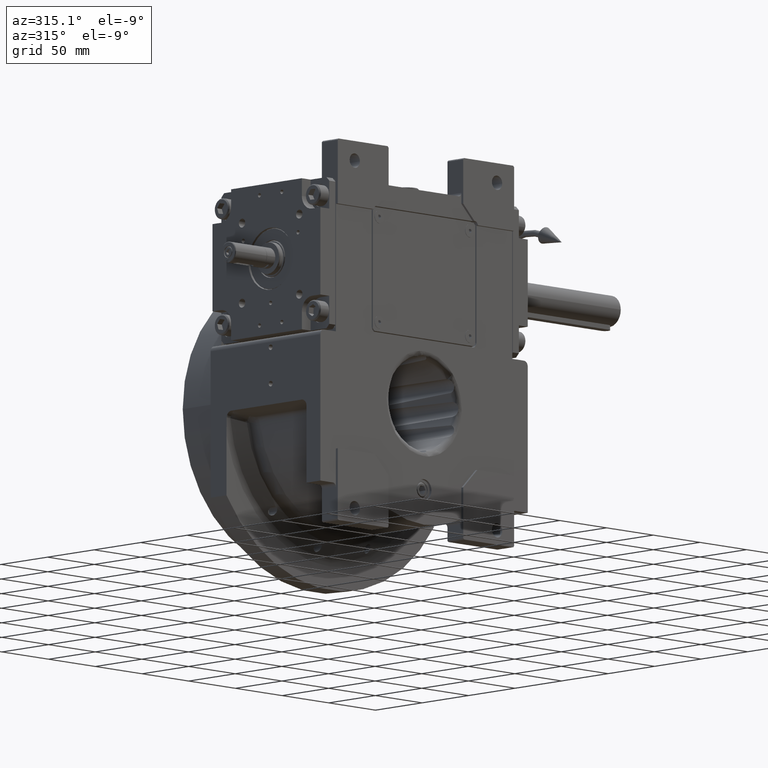
[diagram: clean part render]
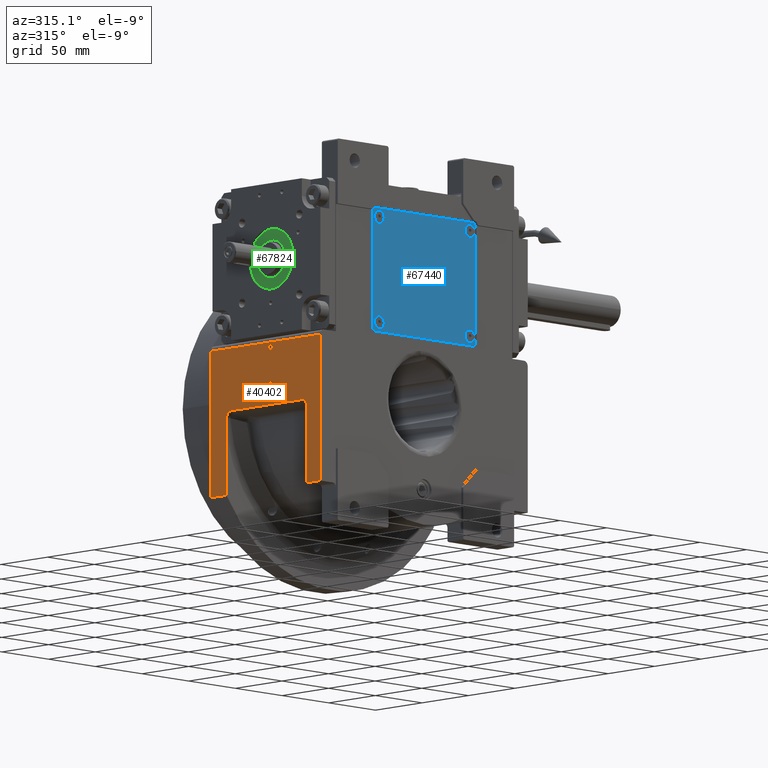
[diagram: same view with three faces highlighted in distinct colors, each labeled with its STEP entity id]
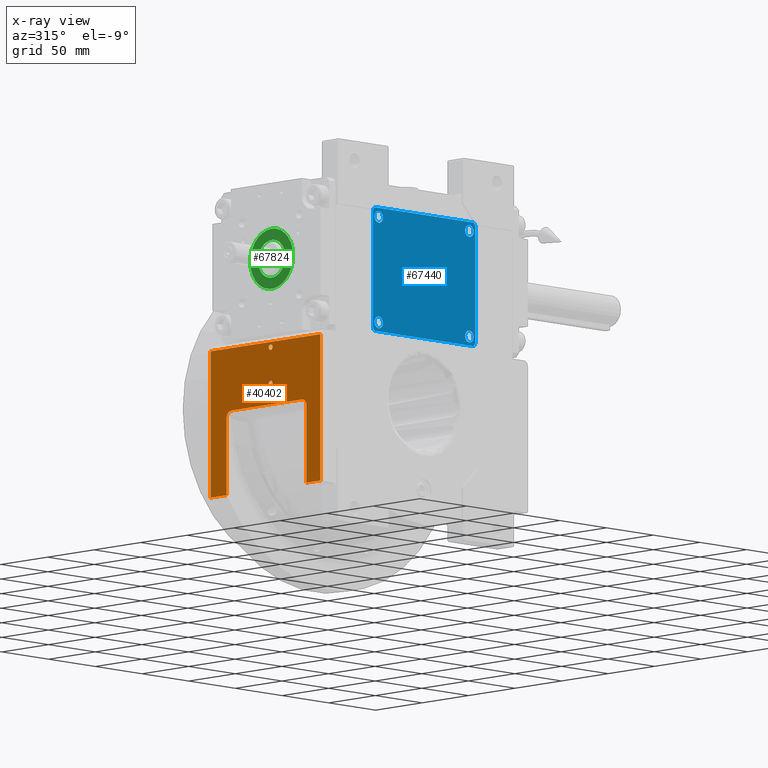
[diagram: x-ray of the same camera — body ghosted, the three highlighted faces saturated]
A machine part, auxiliary view with three faces highlighted in distinct colors.
The next image is the same camera in x-ray (body ghosted, the three faces saturated) — at least one of them is partly hidden behind the body in this view.
Their STEP definitions:

[orange] entity #40402 — the highlighted planar face has unit normal (-1, 0, 0).
#213 = EDGE_CURVE ( 'NONE', #57470, #65083, #43554, .T. ) ;
#360 = CARTESIAN_POINT ( 'NONE',  ( -111.0000000000000284, -38.50000000000000000, -9.144127173638402439 ) ) ;
#388 = DIRECTION ( 'NONE',  ( 0.000000000000000000, 0.000000000000000000, 1.000000000000000000 ) ) ;
#1241 = DIRECTION ( 'NONE',  ( 0.000000000000000000, -1.000000000000000000, 0.000000000000000000 ) ) ;
#2281 = CARTESIAN_POINT ( 'NONE',  ( -111.0000000000000142, 45.57238403428445395, -8.162200170006535416 ) ) ;
#2290 = LINE ( 'NONE', #54681, #30637 ) ;
#2848 = ORIENTED_EDGE ( 'NONE', *, *, #36908, .T. ) ;
#2965 = CARTESIAN_POINT ( 'NONE',  ( -111.0000000000000284, 44.80537002266407853, -7.628406989121505610 ) ) ;
#4379 = CARTESIAN_POINT ( 'NONE',  ( -111.0000000000000000, 2.100000000000000089, 9.000000000000000000 ) ) ;
#4915 = EDGE_LOOP ( 'NONE', ( #2848, #50731 ) ) ;
#4954 = VERTEX_POINT ( 'NONE', #19356 ) ;
#5187 = CARTESIAN_POINT ( 'NONE',  ( -111.0000000000000000, 47.50000000000000000, -25.44626115736729588 ) ) ;
#5208 = EDGE_CURVE ( 'NONE', #34305, #59630, #31456, .T. ) ;
#5230 = CARTESIAN_POINT ( 'NONE',  ( -111.0000000000000000, -38.50000000000000000, -12.17638090205042189 ) ) ;
#5250 = AXIS2_PLACEMENT_3D ( 'NONE', #11910, #59775, #54207 ) ;
#5271 = VERTEX_POINT ( 'NONE', #49437 ) ;
#5921 = CARTESIAN_POINT ( 'NONE',  ( -111.0000000000000142, -36.42893218813447476, -6.999999999999989342 ) ) ;
#6140 = CARTESIAN_POINT ( 'NONE',  ( -111.0000000000000000, -38.50000000000000000, -71.43528539874409944 ) ) ;
#7477 = CARTESIAN_POINT ( 'NONE',  ( -111.0000000000000142, 46.87834784565706059, -10.00509416193215095 ) ) ;
#7510 = ORIENTED_EDGE ( 'NONE', *, *, #55289, .F. ) ;
#8029 = EDGE_CURVE ( 'NONE', #31505, #52250, #30645, .T. ) ;
#8532 = CARTESIAN_POINT ( 'NONE',  ( -111.0000000000000000, 45.20819138357048672, -7.866231648914137509 ) ) ;
#9474 = AXIS2_PLACEMENT_3D ( 'NONE', #42196, #26243, #21038 ) ;
#9727 = CARTESIAN_POINT ( 'NONE',  ( -111.0000000000000284, 47.26671036820440008, -12.69711666045169274 ) ) ;
#10424 = CARTESIAN_POINT ( 'NONE',  ( -111.0000000000000284, 47.30739276393136095, -14.28307552350015541 ) ) ;
#11484 = CARTESIAN_POINT ( 'NONE',  ( -111.0000000000000000, 47.50000000000000000, -25.44626115736729588 ) ) ;
#11727 = EDGE_LOOP ( 'NONE', ( #29040, #15706, #25290, #15888, #56129, #49242, #26731, #40692, #32423, #7510, #54630 ) ) ;
#11887 = VERTEX_POINT ( 'NONE', #66641 ) ;
#11910 = CARTESIAN_POINT ( 'NONE',  ( -111.0000000000000000, -3.552713678800499352E-15, 9.000000000000000000 ) ) ;
#12790 = CARTESIAN_POINT ( 'NONE',  ( -111.0000000000000000, -33.50000000000000000, -7.000000000000000000 ) ) ;
#13161 = DIRECTION ( 'NONE',  ( 0.000000000000000000, 1.000000000000000000, 0.000000000000000000 ) ) ;
#13759 = CARTESIAN_POINT ( 'NONE',  ( -110.9999999999999574, 46.59747468668511772, -9.345669636517394352 ) ) ;
#13914 = VERTEX_POINT ( 'NONE', #68215 ) ;
#14994 = VERTEX_POINT ( 'NONE', #19051 ) ;
#15706 = ORIENTED_EDGE ( 'NONE', *, *, #43576, .F. ) ;
#15737 = CIRCLE ( 'NONE', #37853, 2.100000000000000089 ) ;
#15836 = LINE ( 'NONE', #36984, #52092 ) ;
#15888 = ORIENTED_EDGE ( 'NONE', *, *, #30572, .T. ) ;
#16763 = ORIENTED_EDGE ( 'NONE', *, *, #54089, .T. ) ;
#16948 = DIRECTION ( 'NONE',  ( 0.000000000000000000, 1.000000000000000000, 1.652117596168387559E-15 ) ) ;
#19051 = CARTESIAN_POINT ( 'NONE',  ( -111.0000000000000000, -2.100000000000000089, 9.000000000000000000 ) ) ;
#19356 = CARTESIAN_POINT ( 'NONE',  ( -111.0000000000000000, 47.50000000000000000, -71.43528539874399996 ) ) ;
#21038 = DIRECTION ( 'NONE',  ( 0.000000000000000000, 1.000000000000000000, 0.000000000000000000 ) ) ;
#21675 = CARTESIAN_POINT ( 'NONE',  ( -111.0000000000000000, -3.552713678800499352E-15, 37.00000000000000000 ) ) ;
#23098 = CARTESIAN_POINT ( 'NONE',  ( -111.0000000000000142, 47.23304483909880958, -11.43688986518032635 ) ) ;
#23442 = CARTESIAN_POINT ( 'NONE',  ( -111.0000000000000000, 44.38355727844160015, -7.415682013062533606 ) ) ;
#23801 = CARTESIAN_POINT ( 'NONE',  ( -110.9999999993382005, 42.40620941626179530, -7.000000000177450055 ) ) ;
#23893 = CARTESIAN_POINT ( 'NONE',  ( -111.0000000000000000, -53.50000000000000000, -71.43528539874409944 ) ) ;
#24211 = EDGE_CURVE ( 'NONE', #30939, #57470, #2290, .T. ) ;
#25290 = ORIENTED_EDGE ( 'NONE', *, *, #28167, .T. ) ;
#25627 = CARTESIAN_POINT ( 'NONE',  ( -111.0000000000000000, 47.50000000000000000, -71.43528539874399996 ) ) ;
#26095 = FACE_OUTER_BOUND ( 'NONE', #11727, .T. ) ;
#26243 = DIRECTION ( 'NONE',  ( 1.000000000000000000, 0.000000000000000000, 0.000000000000000000 ) ) ;
#26356 = CARTESIAN_POINT ( 'NONE',  ( -110.9999998426041969, 47.24161804384319652, -11.75654023702319861 ) ) ;
#26627 = LINE ( 'NONE', #25627, #65320 ) ;
#26682 = LINE ( 'NONE', #47832, #39823 ) ;
#26731 = ORIENTED_EDGE ( 'NONE', *, *, #47421, .T. ) ;
#26771 = FACE_BOUND ( 'NONE', #28260, .T. ) ;
#27634 = DIRECTION ( 'NONE',  ( 0.000000000000000000, 0.000000000000000000, 1.000000000000000000 ) ) ;
#28167 = EDGE_CURVE ( 'NONE', #4954, #63048, #26627, .T. ) ;
#28260 = EDGE_LOOP ( 'NONE', ( #16763, #39508 ) ) ;
#28649 = CARTESIAN_POINT ( 'NONE',  ( -111.0000000000000142, 46.90681310458562336, -10.07660401504372771 ) ) ;
#29006 = CARTESIAN_POINT ( 'NONE',  ( -110.9999999999999858, 44.52823829090591090, -7.482778073993033630 ) ) ;
#29040 = ORIENTED_EDGE ( 'NONE', *, *, #24211, .F. ) ;
#29818 = VECTOR ( 'NONE', #1241, 1000.000000000000000 ) ;
#30572 = EDGE_CURVE ( 'NONE', #63048, #31505, #66932, .T. ) ;
#30637 = VECTOR ( 'NONE', #27634, 1000.000000000000000 ) ;
#30645 = B_SPLINE_CURVE_WITH_KNOTS ( 'NONE', 3,
 ( #63826, #23098, #44248, #55011, #49808, #28649, #7477, #13759, #40097, #2281, #8532, #2965, #29006, #23442, #65463, #39747, #50849 ),
 .UNSPECIFIED., .F., .F.,
 ( 4, 1, 1, 2, 2, 2, 1, 2, 2, 4 ),
 ( 0.000000000000000000, 0.1249999999999996114, 0.1874999999999987788, 0.2187499999999980571, 0.2499999999999973077, 0.4999999999999975575, 0.6249999999999972244, 0.6874999999999972244, 0.7499999999999972244, 1.000000000000000000 ),
 .UNSPECIFIED. ) ;
#30879 = CARTESIAN_POINT ( 'NONE',  ( -111.0000000000000000, 47.37801887890174868, -17.18315811918595060 ) ) ;
#30939 = VERTEX_POINT ( 'NONE', #51952 ) ;
#31456 = LINE ( 'NONE', #32120, #37081 ) ;
#31505 = VERTEX_POINT ( 'NONE', #37289 ) ;
#31554 = EDGE_CURVE ( 'NONE', #11887, #67632, #15737, .T. ) ;
#31901 = CARTESIAN_POINT ( 'NONE',  ( -111.0000000000000142, 47.39775283363938030, -18.01025571059393826 ) ) ;
#32003 = AXIS2_PLACEMENT_3D ( 'NONE', #42721, #36842, #388 ) ;
#32120 = CARTESIAN_POINT ( 'NONE',  ( -111.0000000000000000, -38.50000000000000000, -12.17638090205040058 ) ) ;
#32423 = ORIENTED_EDGE ( 'NONE', *, *, #52938, .F. ) ;
#32652 = PLANE ( 'NONE',  #32003 ) ;
#32758 = DIRECTION ( 'NONE',  ( 1.000000000000000000, 0.000000000000000000, 0.000000000000000000 ) ) ;
#33086 = DIRECTION ( 'NONE',  ( 0.000000000000000000, -1.000000000000000000, 0.000000000000000000 ) ) ;
#33835 = CARTESIAN_POINT ( 'NONE',  ( -111.0000000000000000, 64.50000000000000000, 41.00000000000000000 ) ) ;
#33914 = DIRECTION ( 'NONE',  ( 0.000000000000000000, 0.000000000000000000, -1.000000000000000000 ) ) ;
#34305 = VERTEX_POINT ( 'NONE', #65327 ) ;
#35584 = VERTEX_POINT ( 'NONE', #4379 ) ;
#36842 = DIRECTION ( 'NONE',  ( -1.000000000000000000, 0.000000000000000000, 0.000000000000000000 ) ) ;
#36908 = EDGE_CURVE ( 'NONE', #67632, #11887, #58208, .T. ) ;
#36984 = CARTESIAN_POINT ( 'NONE',  ( -111.0000000000000000, 47.50000000000000000, -71.43528539874399996 ) ) ;
#37081 = VECTOR ( 'NONE', #52596, 1000.000000000000000 ) ;
#37169 = CARTESIAN_POINT ( 'NONE',  ( -111.0000000000000000, -33.50000000000000000, -7.000000000000000000 ) ) ;
#37289 = CARTESIAN_POINT ( 'NONE',  ( -110.9999998426041969, 47.24161804384319652, -11.75654023702319861 ) ) ;
#37853 = AXIS2_PLACEMENT_3D ( 'NONE', #21675, #32758, #33086 ) ;
#38640 = AXIS2_PLACEMENT_3D ( 'NONE', #41273, #62456, #16948 ) ;
#38792 = EDGE_CURVE ( 'NONE', #14994, #35584, #56229, .T. ) ;
#39508 = ORIENTED_EDGE ( 'NONE', *, *, #38792, .T. ) ;
#39747 = CARTESIAN_POINT ( 'NONE',  ( -111.0000000000000142, 43.04624886168785025, -7.001080695584134261 ) ) ;
#39823 = VECTOR ( 'NONE', #33914, 1000.000000000000000 ) ;
#40097 = CARTESIAN_POINT ( 'NONE',  ( -110.9999999999999574, 46.24926438878902246, -8.831662360591032268 ) ) ;
#40402 = ADVANCED_FACE ( 'NONE', ( #26771, #47918, #26095 ), #32652, .T. ) ;
#40692 = ORIENTED_EDGE ( 'NONE', *, *, #5208, .T. ) ;
#40834 =( BOUNDED_CURVE ( )  B_SPLINE_CURVE ( 3, ( #37169, #5921, #360, #5230 ),
 .UNSPECIFIED., .F., .F. ) 
 B_SPLINE_CURVE_WITH_KNOTS ( ( 4, 4 ),
 ( 3.141592653590854045, 4.712388980385856740 ),
 .UNSPECIFIED. ) 
 CURVE ( )  GEOMETRIC_REPRESENTATION_ITEM ( )  RATIONAL_B_SPLINE_CURVE ( ( 1.000000000000000000, 0.8047378541243400685, 0.8047378541243400685, 1.000000000000000000 ) ) 
 REPRESENTATION_ITEM ( '' )  );
#40999 = EDGE_CURVE ( 'NONE', #13914, #52250, #48858, .T. ) ;
#41273 = CARTESIAN_POINT ( 'NONE',  ( -111.0000000000000000, -3.552713678800499352E-15, 9.000000000000000000 ) ) ;
#42196 = CARTESIAN_POINT ( 'NONE',  ( -111.0000000000000000, -3.552713678800499352E-15, 37.00000000000000000 ) ) ;
#42721 = CARTESIAN_POINT ( 'NONE',  ( -111.0000000000000000, -53.50000000000000000, -71.43528539874399996 ) ) ;
#43554 = LINE ( 'NONE', #33835, #29818 ) ;
#43576 = EDGE_CURVE ( 'NONE', #4954, #30939, #15836, .T. ) ;
#44248 = CARTESIAN_POINT ( 'NONE',  ( -111.0000000000000142, 47.17730589702550503, -10.96906219321990150 ) ) ;
#47174 = CARTESIAN_POINT ( 'NONE',  ( -111.0000000000000284, 47.38981798226070907, -17.67600262140464196 ) ) ;
#47421 = EDGE_CURVE ( 'NONE', #13914, #34305, #40834, .T. ) ;
#47505 = CARTESIAN_POINT ( 'NONE',  ( -111.0000000000000142, 47.38697793714037942, -17.55712914402924696 ) ) ;
#47832 = CARTESIAN_POINT ( 'NONE',  ( -111.0000000000000000, -53.50000000000000000, 41.00000000000000000 ) ) ;
#47918 = FACE_BOUND ( 'NONE', #4915, .T. ) ;
#48535 = CARTESIAN_POINT ( 'NONE',  ( -111.0000000000000000, 2.100000000000000089, 37.00000000000000000 ) ) ;
#48858 = LINE ( 'NONE', #12790, #66435 ) ;
#49109 = CARTESIAN_POINT ( 'NONE',  ( -111.0000000000000000, -53.50000000000000000, 41.00000000000000000 ) ) ;
#49242 = ORIENTED_EDGE ( 'NONE', *, *, #40999, .F. ) ;
#49437 = CARTESIAN_POINT ( 'NONE',  ( -111.0000000000000000, -53.50000000000000000, -71.43528539874409944 ) ) ;
#49808 = CARTESIAN_POINT ( 'NONE',  ( -111.0000000000000142, 46.96112643920030649, -10.22283934410663697 ) ) ;
#50731 = ORIENTED_EDGE ( 'NONE', *, *, #31554, .T. ) ;
#50849 = CARTESIAN_POINT ( 'NONE',  ( -110.9999999993382005, 42.40620941626179530, -7.000000000177450055 ) ) ;
#51952 = CARTESIAN_POINT ( 'NONE',  ( -111.0000000000000000, 64.50000000000000000, -71.43528539874399996 ) ) ;
#52092 = VECTOR ( 'NONE', #58163, 1000.000000000000000 ) ;
#52250 = VERTEX_POINT ( 'NONE', #23801 ) ;
#52596 = DIRECTION ( 'NONE',  ( 0.000000000000000000, 0.000000000000000000, -1.000000000000000000 ) ) ;
#52938 = EDGE_CURVE ( 'NONE', #5271, #59630, #61041, .T. ) ;
#54089 = EDGE_CURVE ( 'NONE', #35584, #14994, #68582, .T. ) ;
#54207 = DIRECTION ( 'NONE',  ( 0.000000000000000000, -1.000000000000000000, -1.652117596168387559E-15 ) ) ;
#54630 = ORIENTED_EDGE ( 'NONE', *, *, #213, .F. ) ;
#54681 = CARTESIAN_POINT ( 'NONE',  ( -111.0000000000000000, 64.50000000000000000, -71.43528539874399996 ) ) ;
#55011 = CARTESIAN_POINT ( 'NONE',  ( -111.0000000000000000, 47.03723638803381846, -10.44364842193959575 ) ) ;
#55289 = EDGE_CURVE ( 'NONE', #65083, #5271, #26682, .T. ) ;
#56129 = ORIENTED_EDGE ( 'NONE', *, *, #8029, .T. ) ;
#56229 = CIRCLE ( 'NONE', #5250, 2.100000000000000089 ) ;
#57259 = CARTESIAN_POINT ( 'NONE',  ( -111.0000000000000142, 47.38804427955523835, -17.60168279826294579 ) ) ;
#57470 = VERTEX_POINT ( 'NONE', #61535 ) ;
#57599 = CARTESIAN_POINT ( 'NONE',  ( -110.9999999999999716, 47.35640947859300098, -16.28572579493090444 ) ) ;
#58163 = DIRECTION ( 'NONE',  ( 0.000000000000000000, 1.000000000000000000, 0.000000000000000000 ) ) ;
#58208 = CIRCLE ( 'NONE', #9474, 2.100000000000000089 ) ;
#58291 = CARTESIAN_POINT ( 'NONE',  ( -110.9999999999999858, 47.49184152199143227, -23.26125549203704068 ) ) ;
#59630 = VERTEX_POINT ( 'NONE', #6140 ) ;
#59775 = DIRECTION ( 'NONE',  ( 1.000000000000000000, 0.000000000000000000, 0.000000000000000000 ) ) ;
#60660 = DIRECTION ( 'NONE',  ( 0.000000000000000000, 1.000000000000000000, 0.000000000000000000 ) ) ;
#61041 = LINE ( 'NONE', #23893, #61799 ) ;
#61535 = CARTESIAN_POINT ( 'NONE',  ( -111.0000000000000000, 64.50000000000000000, 41.00000000000000000 ) ) ;
#61799 = VECTOR ( 'NONE', #13161, 1000.000000000000000 ) ;
#62456 = DIRECTION ( 'NONE',  ( 1.000000000000000000, 0.000000000000000000, 0.000000000000000000 ) ) ;
#63048 = VERTEX_POINT ( 'NONE', #11484 ) ;
#63826 = CARTESIAN_POINT ( 'NONE',  ( -110.9999998426041969, 47.24161804384319652, -11.75654023702319861 ) ) ;
#63832 = CARTESIAN_POINT ( 'NONE',  ( -110.9999999999999858, 47.45869610671962846, -20.70783326501533494 ) ) ;
#65083 = VERTEX_POINT ( 'NONE', #49109 ) ;
#65320 = VECTOR ( 'NONE', #68311, 1000.000000000000000 ) ;
#65327 = CARTESIAN_POINT ( 'NONE',  ( -111.0000000000000000, -38.50000000000000000, -12.17638090205042189 ) ) ;
#65463 = CARTESIAN_POINT ( 'NONE',  ( -111.0000000000000284, 43.65692249831813143, -7.119924177572298341 ) ) ;
#66435 = VECTOR ( 'NONE', #60660, 1000.000000000000000 ) ;
#66641 = CARTESIAN_POINT ( 'NONE',  ( -111.0000000000000000, -2.100000000000000089, 37.00000000000000000 ) ) ;
#66932 = B_SPLINE_CURVE_WITH_KNOTS ( 'NONE', 3,
 ( #5187, #58291, #63832, #31901, #47174, #57259, #47505, #68045, #30879, #57599, #10424, #9727, #26356 ),
 .UNSPECIFIED., .F., .F.,
 ( 4, 1, 1, 2, 2, 1, 1, 1, 4 ),
 ( 0.000000000000000000, 0.4999999999999906741, 0.5624999999999891198, 0.5703124999999893419, 0.5781249999999896749, 0.5937499999999901190, 0.6249999999999905631, 0.7499999999999935607, 1.000000000000000000 ),
 .UNSPECIFIED. ) ;
#67632 = VERTEX_POINT ( 'NONE', #48535 ) ;
#68045 = CARTESIAN_POINT ( 'NONE',  ( -111.0000000000000568, 47.38398366112607363, -17.43201616111707608 ) ) ;
#68215 = CARTESIAN_POINT ( 'NONE',  ( -111.0000000000000000, -33.50000000000000000, -7.000000000000000000 ) ) ;
#68311 = DIRECTION ( 'NONE',  ( 0.000000000000000000, 0.000000000000000000, 1.000000000000000000 ) ) ;
#68582 = CIRCLE ( 'NONE', #38640, 2.100000000000000089 ) ;

[blue] entity #67440 — the highlighted planar face has unit normal (0, -1, -0).
#1811 = EDGE_CURVE ( 'NONE', #60367, #49142, #32489, .T. ) ;
#1964 = VERTEX_POINT ( 'NONE', #58123 ) ;
#2771 = DIRECTION ( 'NONE',  ( 9.255241265799875595E-31, 0.000000000000000000, 1.000000000000000000 ) ) ;
#2979 = VECTOR ( 'NONE', #42359, 1000.000000000000000 ) ;
#3043 = DIRECTION ( 'NONE',  ( 1.000000000000000000, 1.541976423090496028E-15, 0.000000000000000000 ) ) ;
#3340 = ORIENTED_EDGE ( 'NONE', *, *, #42326, .T. ) ;
#4026 = VECTOR ( 'NONE', #6124, 1000.000000000000114 ) ;
#4419 = ORIENTED_EDGE ( 'NONE', *, *, #57634, .F. ) ;
#5234 = CARTESIAN_POINT ( 'NONE',  ( -54.99999999999973710, 45.50000000000000000, 3.000000000000266454 ) ) ;
#5447 = CARTESIAN_POINT ( 'NONE',  ( 53.00000000000026290, 40.49999999999999289, 3.000000000000002665 ) ) ;
#6124 = DIRECTION ( 'NONE',  ( -0.7071067811865474617, 0.7071067811865474617, -3.697785493223490101E-32 ) ) ;
#6232 = VERTEX_POINT ( 'NONE', #67594 ) ;
#6400 = DIRECTION ( 'NONE',  ( 1.000000000000000000, 1.541976423090496028E-15, 0.000000000000000000 ) ) ;
#6540 = ORIENTED_EDGE ( 'NONE', *, *, #44602, .F. ) ;
#7290 = EDGE_CURVE ( 'NONE', #49142, #21850, #8778, .T. ) ;
#7791 = EDGE_CURVE ( 'NONE', #26896, #36628, #34778, .T. ) ;
#8266 = DIRECTION ( 'NONE',  ( 9.255241265799875595E-31, 0.000000000000000000, 1.000000000000000000 ) ) ;
#8778 = LINE ( 'NONE', #34801, #23619 ) ;
#9717 = CARTESIAN_POINT ( 'NONE',  ( 48.50000000000026290, 40.49999999999999289, 3.000000000000002665 ) ) ;
#9828 = CIRCLE ( 'NONE', #56328, 4.499999999999997335 ) ;
#9833 = CARTESIAN_POINT ( 'NONE',  ( 55.00000000000000000, -45.50000000000000000, 3.000000000000002665 ) ) ;
#9961 = AXIS2_PLACEMENT_3D ( 'NONE', #51709, #30887, #37134 ) ;
#10292 = EDGE_CURVE ( 'NONE', #30342, #43722, #35808, .T. ) ;
#10436 = PLANE ( 'NONE',  #9961 ) ;
#11509 = AXIS2_PLACEMENT_3D ( 'NONE', #9717, #45796, #57251 ) ;
#12923 = EDGE_LOOP ( 'NONE', ( #28818, #35455 ) ) ;
#14723 = DIRECTION ( 'NONE',  ( 9.367723249499515189E-31, 1.000000000000000000, 0.000000000000000000 ) ) ;
#15382 = LINE ( 'NONE', #51468, #15661 ) ;
#15661 = VECTOR ( 'NONE', #18267, 1000.000000000000000 ) ;
#15983 = FACE_BOUND ( 'NONE', #12923, .T. ) ;
#16016 = CARTESIAN_POINT ( 'NONE',  ( 44.00000000000026290, -40.50000000000000000, 2.999999999999995559 ) ) ;
#17445 = CARTESIAN_POINT ( 'NONE',  ( -52.99999999999973710, -40.49999999999973710, 3.000000000000002665 ) ) ;
#17736 = CARTESIAN_POINT ( 'NONE',  ( -54.99999999999973710, 45.50000000000000000, 3.000000000000266454 ) ) ;
#18267 = DIRECTION ( 'NONE',  ( 1.000000000000000000, 9.367723249499515189E-31, 9.255241265799875595E-31 ) ) ;
#18827 = CIRCLE ( 'NONE', #42043, 4.499999999999997335 ) ;
#19925 = DIRECTION ( 'NONE',  ( 0.7071067811865474617, -0.7071067811865474617, 3.697785493223490101E-32 ) ) ;
#20099 = EDGE_CURVE ( 'NONE', #34618, #1964, #30254, .T. ) ;
#21200 = ORIENTED_EDGE ( 'NONE', *, *, #10292, .T. ) ;
#21850 = VERTEX_POINT ( 'NONE', #38286 ) ;
#22178 = DIRECTION ( 'NONE',  ( 0.7071067811865474617, 0.7071067811865474617, 9.367723249499506431E-31 ) ) ;
#22241 = VECTOR ( 'NONE', #22178, 1000.000000000000114 ) ;
#22288 = VERTEX_POINT ( 'NONE', #49627 ) ;
#22374 = LINE ( 'NONE', #43860, #62147 ) ;
#23619 = VECTOR ( 'NONE', #41374, 1000.000000000000000 ) ;
#23932 = DIRECTION ( 'NONE',  ( 1.000000000000000000, 1.541976423090496028E-15, 0.000000000000000000 ) ) ;
#24073 = VERTEX_POINT ( 'NONE', #56489 ) ;
#24287 = VERTEX_POINT ( 'NONE', #37710 ) ;
#24388 = EDGE_CURVE ( 'NONE', #32113, #24073, #15382, .T. ) ;
#26757 = DIRECTION ( 'NONE',  ( 9.255241265799875595E-31, 0.000000000000000000, 1.000000000000000000 ) ) ;
#26896 = VERTEX_POINT ( 'NONE', #5447 ) ;
#27692 = EDGE_CURVE ( 'NONE', #65088, #60367, #41405, .T. ) ;
#27842 = EDGE_LOOP ( 'NONE', ( #49171, #50558 ) ) ;
#28818 = ORIENTED_EDGE ( 'NONE', *, *, #57319, .F. ) ;
#30254 = CIRCLE ( 'NONE', #33527, 4.499999999999997335 ) ;
#30342 = VERTEX_POINT ( 'NONE', #17736 ) ;
#30630 = ORIENTED_EDGE ( 'NONE', *, *, #42338, .F. ) ;
#30887 = DIRECTION ( 'NONE',  ( -9.255241265799875595E-31, -1.734010775707216474E-60, 1.000000000000000000 ) ) ;
#31337 = LINE ( 'NONE', #67470, #52334 ) ;
#31371 = ORIENTED_EDGE ( 'NONE', *, *, #31931, .T. ) ;
#31931 = EDGE_CURVE ( 'NONE', #24073, #65088, #65211, .T. ) ;
#32099 = DIRECTION ( 'NONE',  ( -0.7071067811865474617, -0.7071067811865474617, -9.367723249499506431E-31 ) ) ;
#32113 = VERTEX_POINT ( 'NONE', #45386 ) ;
#32489 = LINE ( 'NONE', #53641, #4026 ) ;
#32638 = DIRECTION ( 'NONE',  ( -1.000000000000000000, -1.541976423090496028E-15, 0.000000000000000000 ) ) ;
#32775 = DIRECTION ( 'NONE',  ( 9.255241265799875595E-31, 0.000000000000000000, 1.000000000000000000 ) ) ;
#32961 = CARTESIAN_POINT ( 'NONE',  ( 48.50000000000026290, 40.49999999999999289, 3.000000000000002665 ) ) ;
#33527 = AXIS2_PLACEMENT_3D ( 'NONE', #60737, #49969, #51339 ) ;
#34515 = CIRCLE ( 'NONE', #66640, 4.499999999999997335 ) ;
#34618 = VERTEX_POINT ( 'NONE', #16016 ) ;
#34778 = CIRCLE ( 'NONE', #11509, 4.499999999999997335 ) ;
#34801 = CARTESIAN_POINT ( 'NONE',  ( 53.00000000000026290, 47.50000000000000000, 3.000000000000002665 ) ) ;
#35455 = ORIENTED_EDGE ( 'NONE', *, *, #40637, .F. ) ;
#35808 = LINE ( 'NONE', #5234, #2979 ) ;
#36628 = VERTEX_POINT ( 'NONE', #54383 ) ;
#37134 = DIRECTION ( 'NONE',  ( 1.000000000000000000, 9.367723249499515189E-31, 9.255241265799875595E-31 ) ) ;
#37710 = CARTESIAN_POINT ( 'NONE',  ( -43.99999999999973710, 40.49999999999999289, 3.000000000000009770 ) ) ;
#38286 = CARTESIAN_POINT ( 'NONE',  ( -52.99999999999973710, 47.50000000000000000, 3.000000000000259348 ) ) ;
#38693 = VERTEX_POINT ( 'NONE', #17445 ) ;
#38834 = AXIS2_PLACEMENT_3D ( 'NONE', #49070, #32775, #6400 ) ;
#40637 = EDGE_CURVE ( 'NONE', #38693, #6232, #47538, .T. ) ;
#41374 = DIRECTION ( 'NONE',  ( -1.000000000000000000, -9.367723249499515189E-31, -9.255241265799875595E-31 ) ) ;
#41405 = LINE ( 'NONE', #9833, #55287 ) ;
#42043 = AXIS2_PLACEMENT_3D ( 'NONE', #61699, #8266, #3043 ) ;
#42249 = EDGE_LOOP ( 'NONE', ( #61542, #6540 ) ) ;
#42326 = EDGE_CURVE ( 'NONE', #21850, #30342, #22374, .T. ) ;
#42338 = EDGE_CURVE ( 'NONE', #24287, #22288, #54315, .T. ) ;
#42359 = DIRECTION ( 'NONE',  ( -9.367723249499515189E-31, -1.000000000000000000, 0.000000000000000000 ) ) ;
#42661 = FACE_BOUND ( 'NONE', #27842, .T. ) ;
#43634 = ORIENTED_EDGE ( 'NONE', *, *, #27692, .T. ) ;
#43722 = VERTEX_POINT ( 'NONE', #54281 ) ;
#43737 = DIRECTION ( 'NONE',  ( 9.255241265799875595E-31, 0.000000000000000000, 1.000000000000000000 ) ) ;
#43764 = ORIENTED_EDGE ( 'NONE', *, *, #7290, .T. ) ;
#43860 = CARTESIAN_POINT ( 'NONE',  ( -52.99999999999973710, 47.50000000000000000, 3.000000000000259348 ) ) ;
#44602 = EDGE_CURVE ( 'NONE', #36628, #26896, #34515, .T. ) ;
#45386 = CARTESIAN_POINT ( 'NONE',  ( -53.00000000000000000, -47.49999999999973710, 3.000000000000266454 ) ) ;
#45437 = CARTESIAN_POINT ( 'NONE',  ( 48.50000000000026290, -40.50000000000000000, 2.999999999999738876 ) ) ;
#45573 = CARTESIAN_POINT ( 'NONE',  ( 55.00000000000026290, 45.50000000000000000, 3.000000000000002665 ) ) ;
#45796 = DIRECTION ( 'NONE',  ( 9.255241265799875595E-31, 0.000000000000000000, 1.000000000000000000 ) ) ;
#45961 = EDGE_CURVE ( 'NONE', #43722, #32113, #31337, .T. ) ;
#46493 = FACE_BOUND ( 'NONE', #42249, .T. ) ;
#47538 = CIRCLE ( 'NONE', #61990, 4.499999999999997335 ) ;
#47632 = AXIS2_PLACEMENT_3D ( 'NONE', #62223, #68120, #57001 ) ;
#47858 = FACE_BOUND ( 'NONE', #49489, .T. ) ;
#48254 = CARTESIAN_POINT ( 'NONE',  ( 53.00000000000026290, 47.50000000000000000, 3.000000000000002665 ) ) ;
#48765 = CIRCLE ( 'NONE', #47632, 4.499999999999997335 ) ;
#48768 = CARTESIAN_POINT ( 'NONE',  ( 55.00000000000000000, -45.50000000000000000, 3.000000000000002665 ) ) ;
#48946 = ORIENTED_EDGE ( 'NONE', *, *, #1811, .T. ) ;
#49070 = CARTESIAN_POINT ( 'NONE',  ( -48.49999999999973710, 40.49999999999999289, 3.000000000000259348 ) ) ;
#49142 = VERTEX_POINT ( 'NONE', #48254 ) ;
#49171 = ORIENTED_EDGE ( 'NONE', *, *, #53899, .F. ) ;
#49489 = EDGE_LOOP ( 'NONE', ( #30630, #4419 ) ) ;
#49627 = CARTESIAN_POINT ( 'NONE',  ( -52.99999999999973710, 40.49999999999999289, 3.000000000000259348 ) ) ;
#49969 = DIRECTION ( 'NONE',  ( 9.255241265799875595E-31, 0.000000000000000000, 1.000000000000000000 ) ) ;
#50558 = ORIENTED_EDGE ( 'NONE', *, *, #20099, .F. ) ;
#51339 = DIRECTION ( 'NONE',  ( -1.000000000000000000, -1.541976423090496028E-15, 0.000000000000000000 ) ) ;
#51468 = CARTESIAN_POINT ( 'NONE',  ( -53.00000000000000000, -47.49999999999973710, 3.000000000000266454 ) ) ;
#51709 = CARTESIAN_POINT ( 'NONE',  ( 0.000000000000000000, 0.000000000000000000, 3.000000000000002665 ) ) ;
#52334 = VECTOR ( 'NONE', #19925, 1000.000000000000114 ) ;
#53641 = CARTESIAN_POINT ( 'NONE',  ( 55.00000000000026290, 45.50000000000000000, 3.000000000000002665 ) ) ;
#53749 = CARTESIAN_POINT ( 'NONE',  ( 53.00000000000000000, -47.50000000000000000, 3.000000000000002665 ) ) ;
#53899 = EDGE_CURVE ( 'NONE', #1964, #34618, #9828, .T. ) ;
#53932 = ORIENTED_EDGE ( 'NONE', *, *, #24388, .T. ) ;
#54281 = CARTESIAN_POINT ( 'NONE',  ( -55.00000000000000000, -45.49999999999973710, 3.000000000000266454 ) ) ;
#54315 = CIRCLE ( 'NONE', #38834, 4.499999999999997335 ) ;
#54383 = CARTESIAN_POINT ( 'NONE',  ( 44.00000000000026290, 40.49999999999999289, 3.000000000000002665 ) ) ;
#55287 = VECTOR ( 'NONE', #14723, 1000.000000000000000 ) ;
#55645 = ORIENTED_EDGE ( 'NONE', *, *, #45961, .T. ) ;
#56328 = AXIS2_PLACEMENT_3D ( 'NONE', #45437, #2771, #23932 ) ;
#56489 = CARTESIAN_POINT ( 'NONE',  ( 53.00000000000000000, -47.50000000000000000, 3.000000000000002665 ) ) ;
#57001 = DIRECTION ( 'NONE',  ( -1.000000000000000000, -1.541976423090496028E-15, 0.000000000000000000 ) ) ;
#57251 = DIRECTION ( 'NONE',  ( 1.000000000000000000, 1.541976423090496028E-15, 0.000000000000000000 ) ) ;
#57319 = EDGE_CURVE ( 'NONE', #6232, #38693, #18827, .T. ) ;
#57634 = EDGE_CURVE ( 'NONE', #22288, #24287, #48765, .T. ) ;
#58123 = CARTESIAN_POINT ( 'NONE',  ( 53.00000000000026290, -40.50000000000000000, 2.999999999999738876 ) ) ;
#60367 = VERTEX_POINT ( 'NONE', #45573 ) ;
#60406 = CARTESIAN_POINT ( 'NONE',  ( -48.49999999999973710, -40.49999999999973710, 3.000000000000002665 ) ) ;
#60737 = CARTESIAN_POINT ( 'NONE',  ( 48.50000000000026290, -40.50000000000000000, 2.999999999999738876 ) ) ;
#61542 = ORIENTED_EDGE ( 'NONE', *, *, #7791, .F. ) ;
#61699 = CARTESIAN_POINT ( 'NONE',  ( -48.49999999999973710, -40.49999999999973710, 3.000000000000002665 ) ) ;
#61990 = AXIS2_PLACEMENT_3D ( 'NONE', #60406, #43737, #64933 ) ;
#62147 = VECTOR ( 'NONE', #32099, 1000.000000000000114 ) ;
#62223 = CARTESIAN_POINT ( 'NONE',  ( -48.49999999999973710, 40.49999999999999289, 3.000000000000259348 ) ) ;
#63504 = FACE_OUTER_BOUND ( 'NONE', #68231, .T. ) ;
#64933 = DIRECTION ( 'NONE',  ( -1.000000000000000000, -1.541976423090496028E-15, 0.000000000000000000 ) ) ;
#65088 = VERTEX_POINT ( 'NONE', #48768 ) ;
#65211 = LINE ( 'NONE', #53749, #22241 ) ;
#66640 = AXIS2_PLACEMENT_3D ( 'NONE', #32961, #26757, #32638 ) ;
#67440 = ADVANCED_FACE ( 'NONE', ( #63504, #46493, #47858, #42661, #15983 ), #10436, .T. ) ;
#67470 = CARTESIAN_POINT ( 'NONE',  ( -55.00000000000000000, -45.49999999999973710, 3.000000000000266454 ) ) ;
#67594 = CARTESIAN_POINT ( 'NONE',  ( -43.99999999999973710, -40.49999999999973710, 2.999999999999995559 ) ) ;
#68120 = DIRECTION ( 'NONE',  ( 9.255241265799875595E-31, 0.000000000000000000, 1.000000000000000000 ) ) ;
#68231 = EDGE_LOOP ( 'NONE', ( #43634, #48946, #43764, #3340, #21200, #55645, #53932, #31371 ) ) ;

[green] entity #67824 — the highlighted planar face has unit normal (1, -0, 0).
#365 =( BOUNDED_CURVE ( )  B_SPLINE_CURVE ( 3, ( #14958, #20151, #58290, #31900, #25006, #57258, #46145 ),
 .UNSPECIFIED., .F., .F. ) 
 B_SPLINE_CURVE_WITH_KNOTS ( ( 4, 3, 4 ),
 ( 2.632998397732662088, 4.203794753919684268, 5.774591110106706893 ),
 .UNSPECIFIED. ) 
 CURVE ( )  GEOMETRIC_REPRESENTATION_ITEM ( )  RATIONAL_B_SPLINE_CURVE ( ( 1.000000000000000000, 0.8047378471965744851, 0.8047378471965744851, 1.000000000000000000, 0.8047378471965744851, 0.8047378471965744851, 1.000000000000000000 ) ) 
 REPRESENTATION_ITEM ( '' )  );
#2095 = DIRECTION ( 'NONE',  ( 8.378273520461068661E-35, 1.000000000000000000, 0.000000000000000000 ) ) ;
#7629 = EDGE_CURVE ( 'NONE', #61932, #56651, #29236, .T. ) ;
#8002 = CARTESIAN_POINT ( 'NONE',  ( 8.881784197001753250E-16, 7.000000000000006217, 0.000000000000000000 ) ) ;
#8552 = EDGE_LOOP ( 'NONE', ( #38248, #19142 ) ) ;
#10962 = VERTEX_POINT ( 'NONE', #34958 ) ;
#12063 = CARTESIAN_POINT ( 'NONE',  ( 23.09585401869799881, 6.999999542325330282, 2.173375368563768006E-08 ) ) ;
#12596 = AXIS2_PLACEMENT_3D ( 'NONE', #8002, #2095, #12874 ) ;
#12874 = DIRECTION ( 'NONE',  ( 1.000000000000000000, 0.000000000000000000, 0.000000000000000000 ) ) ;
#13485 = CARTESIAN_POINT ( 'NONE',  ( -14.54009600442810068, 6.999999999999992006, 0.000000000000000000 ) ) ;
#14958 = CARTESIAN_POINT ( 'NONE',  ( -23.09585401869804855, 6.999999542325357815, -2.173322632970098311E-08 ) ) ;
#15156 = CARTESIAN_POINT ( 'NONE',  ( -1.318389841742373392E-13, 7.000000000000007105, -23.09585494913769921 ) ) ;
#18006 = DIRECTION ( 'NONE',  ( -1.836970198721029688E-16, -1.000000000000000000, 4.683861624749757595E-31 ) ) ;
#18361 = EDGE_LOOP ( 'NONE', ( #44114, #26302, #35768 ) ) ;
#19142 = ORIENTED_EDGE ( 'NONE', *, *, #53965, .T. ) ;
#20151 = CARTESIAN_POINT ( 'NONE',  ( -23.09585573493721355, 7.000000000000010658, 13.52923849051302341 ) ) ;
#20791 = DIRECTION ( 'NONE',  ( 1.000000000000000000, 0.000000000000000000, -1.832543098951272119E-16 ) ) ;
#21219 = CARTESIAN_POINT ( 'NONE',  ( -1.318389841742373392E-13, 7.000000000000007105, -23.09585494913769921 ) ) ;
#21471 = DIRECTION ( 'NONE',  ( -8.378273520461068661E-35, -1.000000000000000000, 0.000000000000000000 ) ) ;
#23538 = FACE_OUTER_BOUND ( 'NONE', #18361, .T. ) ;
#25006 = CARTESIAN_POINT ( 'NONE',  ( 13.52923793185785151, 7.000000000000003553, 23.09585496186891973 ) ) ;
#26302 = ORIENTED_EDGE ( 'NONE', *, *, #53666, .T. ) ;
#26412 = CARTESIAN_POINT ( 'NONE',  ( -23.09585468350382342, 7.000000000000011546, -13.52923811714243030 ) ) ;
#28742 =( BOUNDED_CURVE ( )  B_SPLINE_CURVE ( 3, ( #62685, #61665, #51907, #15156 ),
 .UNSPECIFIED., .F., .F. ) 
 B_SPLINE_CURVE_WITH_KNOTS ( ( 4, 4 ),
 ( 5.774591035009657425, 7.345387430054535649 ),
 .UNSPECIFIED. ) 
 CURVE ( )  GEOMETRIC_REPRESENTATION_ITEM ( )  RATIONAL_B_SPLINE_CURVE ( ( 1.000000000000000000, 0.8047378380376898344, 0.8047378380376898344, 1.000000000000000000 ) ) 
 REPRESENTATION_ITEM ( '' )  );
#29236 = CIRCLE ( 'NONE', #12596, 14.54009600442812022 ) ;
#31900 = CARTESIAN_POINT ( 'NONE',  ( -8.974547976333063281E-07, 7.000000000000004441, 23.09585494913771697 ) ) ;
#34292 = CARTESIAN_POINT ( 'NONE',  ( 1.289551610513673017E-15, 7.000000000000006217, 0.000000000000000000 ) ) ;
#34958 = CARTESIAN_POINT ( 'NONE',  ( -23.09585401869804855, 6.999999542325357815, -2.173322632970098311E-08 ) ) ;
#35768 = ORIENTED_EDGE ( 'NONE', *, *, #66222, .T. ) ;
#36381 =( BOUNDED_CURVE ( )  B_SPLINE_CURVE ( 3, ( #21219, #63545, #26412, #62866 ),
 .UNSPECIFIED., .F., .F. ) 
 B_SPLINE_CURVE_WITH_KNOTS ( ( 4, 4 ),
 ( 1.062202122874949417, 2.632998440204159074 ),
 .UNSPECIFIED. ) 
 CURVE ( )  GEOMETRIC_REPRESENTATION_ITEM ( )  RATIONAL_B_SPLINE_CURVE ( ( 1.000000000000000000, 0.8047378563554488107, 0.8047378563554488107, 1.000000000000000000 ) ) 
 REPRESENTATION_ITEM ( '' )  );
#38248 = ORIENTED_EDGE ( 'NONE', *, *, #7629, .F. ) ;
#38769 = AXIS2_PLACEMENT_3D ( 'NONE', #34292, #18006, #39165 ) ;
#38968 = VERTEX_POINT ( 'NONE', #46542 ) ;
#39165 = DIRECTION ( 'NONE',  ( -1.000000000000000000, 1.836970198721029688E-16, 0.000000000000000000 ) ) ;
#41606 = CARTESIAN_POINT ( 'NONE',  ( 4.930380657631323784E-29, 7.000000000000006217, 0.000000000000000000 ) ) ;
#44037 = CARTESIAN_POINT ( 'NONE',  ( 14.54009600442812022, 7.000000000000006217, 0.000000000000000000 ) ) ;
#44114 = ORIENTED_EDGE ( 'NONE', *, *, #62635, .T. ) ;
#44700 = FACE_BOUND ( 'NONE', #8552, .T. ) ;
#46145 = CARTESIAN_POINT ( 'NONE',  ( 23.09585401869799881, 6.999999542325330282, 2.173375368563768006E-08 ) ) ;
#46542 = CARTESIAN_POINT ( 'NONE',  ( -1.318389841742373392E-13, 7.000000000000007105, -23.09585494913769921 ) ) ;
#47490 = AXIS2_PLACEMENT_3D ( 'NONE', #41606, #21471, #20791 ) ;
#50827 = CIRCLE ( 'NONE', #47490, 14.54009600442812022 ) ;
#51907 = CARTESIAN_POINT ( 'NONE',  ( 13.52923924615012652, 7.000000000000004441, -23.09585546212341711 ) ) ;
#53666 = EDGE_CURVE ( 'NONE', #38968, #10962, #36381, .T. ) ;
#53965 = EDGE_CURVE ( 'NONE', #61932, #56651, #50827, .T. ) ;
#56651 = VERTEX_POINT ( 'NONE', #13485 ) ;
#57258 = CARTESIAN_POINT ( 'NONE',  ( 23.09585468350353565, 7.000000000000001776, 13.52923853398008447 ) ) ;
#58290 = CARTESIAN_POINT ( 'NONE',  ( -13.52923972676744491, 7.000000000000007994, 23.09585493640651421 ) ) ;
#61665 = CARTESIAN_POINT ( 'NONE',  ( 23.09585573493750132, 7.000000000000002665, -13.52923890735010559 ) ) ;
#61932 = VERTEX_POINT ( 'NONE', #44037 ) ;
#62380 = VERTEX_POINT ( 'NONE', #12063 ) ;
#62635 = EDGE_CURVE ( 'NONE', #62380, #38968, #28742, .T. ) ;
#62685 = CARTESIAN_POINT ( 'NONE',  ( 23.09585401869799881, 6.999999542325330282, 2.173375368563768006E-08 ) ) ;
#62866 = CARTESIAN_POINT ( 'NONE',  ( -23.09585401869804855, 6.999999542325357815, -2.173322632970098311E-08 ) ) ;
#63545 = CARTESIAN_POINT ( 'NONE',  ( -13.52923841247563708, 7.000000000000010658, -23.09585443615200973 ) ) ;
#65557 = PLANE ( 'NONE',  #38769 ) ;
#66222 = EDGE_CURVE ( 'NONE', #10962, #62380, #365, .T. ) ;
#67824 = ADVANCED_FACE ( 'NONE', ( #23538, #44700 ), #65557, .F. ) ;